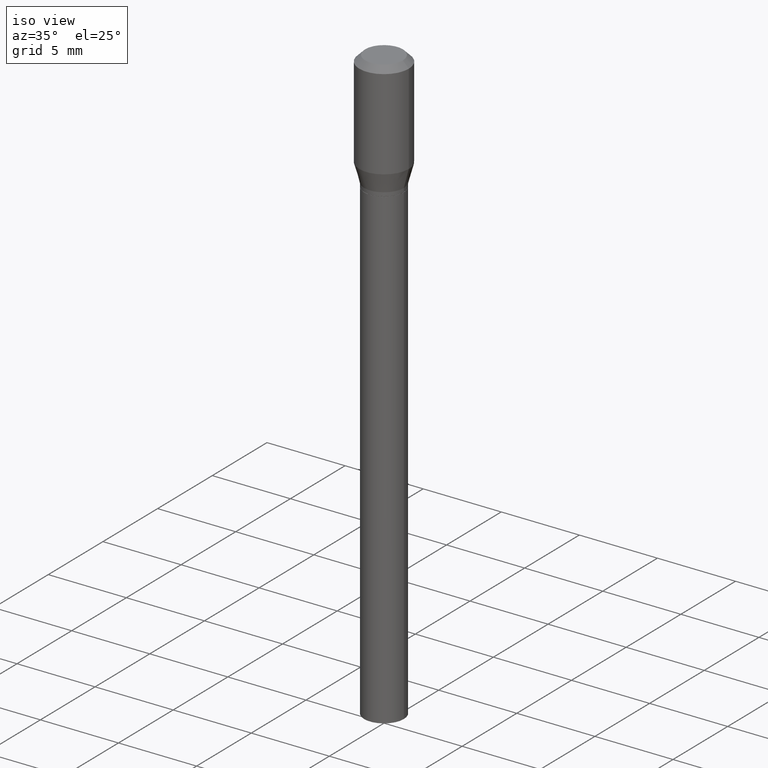
[diagram: clean part render]
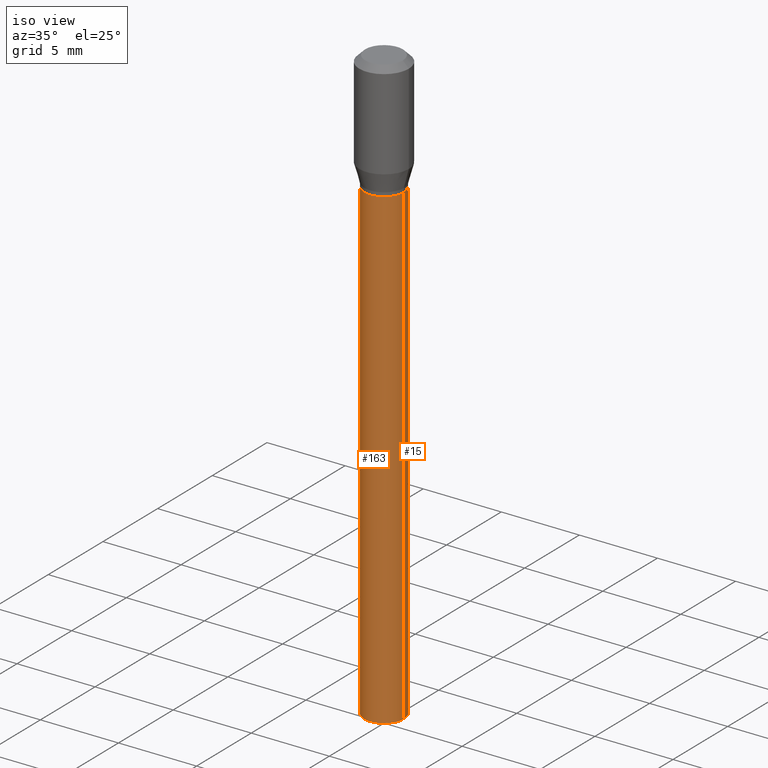
[diagram: same view with one multi-face feature highlighted, each face labeled with its STEP entity id]
A machine part, iso view. The highlighted faces form ONE feature: a constant-radius fillet chain: 2 tangent blend faces with common blend radius 1.27 mm. The faces share edges in the B-rep.
Their STEP definitions:
[1] entity #163 (Cylinder):
#2 = AXIS2_PLACEMENT_3D ( 'NONE', #274, #423, #183 ) ;
#3 = FACE_OUTER_BOUND ( 'NONE', #355, .T. ) ;
#5 = EDGE_CURVE ( 'NONE', #420, #188, #295, .T. ) ;
#29 = LINE ( 'NONE', #437, #48 ) ;
#48 = VECTOR ( 'NONE', #211, 39.37007874015748143 ) ;
#53 = DIRECTION ( 'NONE',  ( -2.445468806185136597E-29, 3.491481338843145583E-15, 1.000000000000000000 ) ) ;
#54 = CARTESIAN_POINT ( 'NONE',  ( 0.05000000000000000278, -1.396592535537257878E-15, -0.3000000000000002109 ) ) ;
#89 = EDGE_CURVE ( 'NONE', #302, #150, #29, .T. ) ;
#119 = CIRCLE ( 'NONE', #453, 0.05000000000000000278 ) ;
#143 = CARTESIAN_POINT ( 'NONE',  ( 0.000000000000000000, 0.000000000000000000, 0.000000000000000000 ) ) ;
#150 = VERTEX_POINT ( 'NONE', #245 ) ;
#163 = ADVANCED_FACE ( 'NONE', ( #3 ), #389, .T. ) ;
#183 = DIRECTION ( 'NONE',  ( 1.000000000000000000, -6.982962677686267499E-15, 0.000000000000000000 ) ) ;
#188 = VERTEX_POINT ( 'NONE', #54 ) ;
#202 = CARTESIAN_POINT ( 'NONE',  ( -0.05000000000000000278, -2.787061837078781050E-15, -1.500000000000000222 ) ) ;
#211 = DIRECTION ( 'NONE',  ( -2.445468806185136877E-29, 3.491481338843145188E-15, 1.000000000000000000 ) ) ;
#221 = ORIENTED_EDGE ( 'NONE', *, *, #89, .F. ) ;
#245 = CARTESIAN_POINT ( 'NONE',  ( -0.05000000000000000278, -2.787061837078781050E-15, -0.3000000000000002109 ) ) ;
#254 = EDGE_CURVE ( 'NONE', #302, #420, #119, .T. ) ;
#256 = ORIENTED_EDGE ( 'NONE', *, *, #5, .T. ) ;
#265 = ORIENTED_EDGE ( 'NONE', *, *, #254, .T. ) ;
#271 = ORIENTED_EDGE ( 'NONE', *, *, #343, .F. ) ;
#274 = CARTESIAN_POINT ( 'NONE',  ( 7.336406418555414555E-30, -1.047444401652944543E-15, -0.3000000000000002109 ) ) ;
#295 = LINE ( 'NONE', #368, #459 ) ;
#302 = VERTEX_POINT ( 'NONE', #202 ) ;
#320 = CARTESIAN_POINT ( 'NONE',  ( 3.668203209277704895E-29, -5.237222008264718177E-15, -1.500000000000000222 ) ) ;
#332 = DIRECTION ( 'NONE',  ( -2.445468806185136877E-29, 3.491481338843145188E-15, 1.000000000000000000 ) ) ;
#343 = EDGE_CURVE ( 'NONE', #150, #188, #436, .T. ) ;
#347 = DIRECTION ( 'NONE',  ( 1.000000000000000000, -6.982962677686267499E-15, 4.876176775795936353E-29 ) ) ;
#351 = DIRECTION ( 'NONE',  ( 1.000000000000000000, -6.982962677686274599E-15, 0.000000000000000000 ) ) ;
#355 = EDGE_LOOP ( 'NONE', ( #221, #265, #256, #271 ) ) ;
#368 = CARTESIAN_POINT ( 'NONE',  ( 0.05000000000000000278, -3.491481338843133848E-16, 2.438088387897968247E-30 ) ) ;
#389 = CYLINDRICAL_SURFACE ( 'NONE', #412, 0.05000000000000000278 ) ;
#390 = DIRECTION ( 'NONE',  ( -2.445468806185136597E-29, 3.491481338843145583E-15, 1.000000000000000000 ) ) ;
#405 = CARTESIAN_POINT ( 'NONE',  ( 0.05000000000000000278, -5.586370142149032301E-15, -1.500000000000000222 ) ) ;
#412 = AXIS2_PLACEMENT_3D ( 'NONE', #143, #53, #347 ) ;
#420 = VERTEX_POINT ( 'NONE', #405 ) ;
#423 = DIRECTION ( 'NONE',  ( -2.445468806185136597E-29, 3.491481338843145583E-15, 1.000000000000000000 ) ) ;
#436 = CIRCLE ( 'NONE', #2, 0.05000000000000000278 ) ;
#437 = CARTESIAN_POINT ( 'NONE',  ( -0.05000000000000000278, 3.552713678800501127E-16, -2.459467545127453311E-30 ) ) ;
#453 = AXIS2_PLACEMENT_3D ( 'NONE', #320, #390, #351 ) ;
#459 = VECTOR ( 'NONE', #332, 39.37007874015748143 ) ;
[2] entity #15 (Cylinder):
#5 = EDGE_CURVE ( 'NONE', #420, #188, #295, .T. ) ;
#6 = FACE_OUTER_BOUND ( 'NONE', #330, .T. ) ;
#15 = ADVANCED_FACE ( 'NONE', ( #6 ), #370, .T. ) ;
#28 = DIRECTION ( 'NONE',  ( 1.000000000000000000, -6.982962677686267499E-15, 4.876176775795936353E-29 ) ) ;
#29 = LINE ( 'NONE', #437, #48 ) ;
#48 = VECTOR ( 'NONE', #211, 39.37007874015748143 ) ;
#54 = CARTESIAN_POINT ( 'NONE',  ( 0.05000000000000000278, -1.396592535537257878E-15, -0.3000000000000002109 ) ) ;
#56 = CARTESIAN_POINT ( 'NONE',  ( 3.668203209277704895E-29, -5.237222008264718177E-15, -1.500000000000000222 ) ) ;
#62 = DIRECTION ( 'NONE',  ( -2.445468806185136597E-29, 3.491481338843145583E-15, 1.000000000000000000 ) ) ;
#77 = ORIENTED_EDGE ( 'NONE', *, *, #241, .T. ) ;
#89 = EDGE_CURVE ( 'NONE', #302, #150, #29, .T. ) ;
#90 = CIRCLE ( 'NONE', #218, 0.05000000000000000278 ) ;
#150 = VERTEX_POINT ( 'NONE', #245 ) ;
#161 = DIRECTION ( 'NONE',  ( -2.445468806185136597E-29, 3.491481338843145583E-15, 1.000000000000000000 ) ) ;
#172 = DIRECTION ( 'NONE',  ( -2.445468806185136597E-29, 3.491481338843145583E-15, 1.000000000000000000 ) ) ;
#188 = VERTEX_POINT ( 'NONE', #54 ) ;
#202 = CARTESIAN_POINT ( 'NONE',  ( -0.05000000000000000278, -2.787061837078781050E-15, -1.500000000000000222 ) ) ;
#211 = DIRECTION ( 'NONE',  ( -2.445468806185136877E-29, 3.491481338843145188E-15, 1.000000000000000000 ) ) ;
#218 = AXIS2_PLACEMENT_3D ( 'NONE', #235, #161, #311 ) ;
#235 = CARTESIAN_POINT ( 'NONE',  ( 7.336406418555414555E-30, -1.047444401652944543E-15, -0.3000000000000002109 ) ) ;
#241 = EDGE_CURVE ( 'NONE', #420, #302, #333, .T. ) ;
#245 = CARTESIAN_POINT ( 'NONE',  ( -0.05000000000000000278, -2.787061837078781050E-15, -0.3000000000000002109 ) ) ;
#295 = LINE ( 'NONE', #368, #459 ) ;
#299 = ORIENTED_EDGE ( 'NONE', *, *, #5, .F. ) ;
#302 = VERTEX_POINT ( 'NONE', #202 ) ;
#311 = DIRECTION ( 'NONE',  ( 1.000000000000000000, -6.982962677686267499E-15, 0.000000000000000000 ) ) ;
#318 = DIRECTION ( 'NONE',  ( 1.000000000000000000, -6.982962677686274599E-15, 0.000000000000000000 ) ) ;
#330 = EDGE_LOOP ( 'NONE', ( #77, #375, #338, #299 ) ) ;
#332 = DIRECTION ( 'NONE',  ( -2.445468806185136877E-29, 3.491481338843145188E-15, 1.000000000000000000 ) ) ;
#333 = CIRCLE ( 'NONE', #393, 0.05000000000000000278 ) ;
#338 = ORIENTED_EDGE ( 'NONE', *, *, #455, .F. ) ;
#353 = AXIS2_PLACEMENT_3D ( 'NONE', #400, #62, #28 ) ;
#368 = CARTESIAN_POINT ( 'NONE',  ( 0.05000000000000000278, -3.491481338843133848E-16, 2.438088387897968247E-30 ) ) ;
#370 = CYLINDRICAL_SURFACE ( 'NONE', #353, 0.05000000000000000278 ) ;
#375 = ORIENTED_EDGE ( 'NONE', *, *, #89, .T. ) ;
#393 = AXIS2_PLACEMENT_3D ( 'NONE', #56, #172, #318 ) ;
#400 = CARTESIAN_POINT ( 'NONE',  ( 0.000000000000000000, 0.000000000000000000, 0.000000000000000000 ) ) ;
#405 = CARTESIAN_POINT ( 'NONE',  ( 0.05000000000000000278, -5.586370142149032301E-15, -1.500000000000000222 ) ) ;
#420 = VERTEX_POINT ( 'NONE', #405 ) ;
#437 = CARTESIAN_POINT ( 'NONE',  ( -0.05000000000000000278, 3.552713678800501127E-16, -2.459467545127453311E-30 ) ) ;
#455 = EDGE_CURVE ( 'NONE', #188, #150, #90, .T. ) ;
#459 = VECTOR ( 'NONE', #332, 39.37007874015748143 ) ;